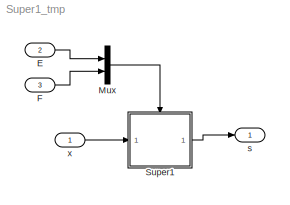
MODEL Super1_tmp
KIND model
BLOCK [Inport] E
  IconDisplay = Port number
  Port = 2
  SID = 3
BLOCK [Inport] F
  IconDisplay = Port number
  Port = 3
  SID = 4
BLOCK [Mux] Mux
  DisplayOption = bar
  Inputs = 2
  Ports = [2, 1]
  SID = 2
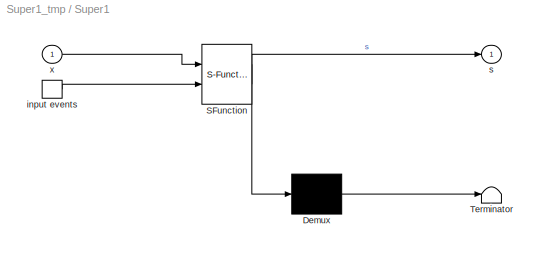
BLOCK [SubSystem] Super1
  ErrorFcn = Stateflow.Translate.translate
  PermitHierarchicalResolution = ParametersOnly
  Ports = [1, 1, 0, 1]
  RequestExecContextInheritance = off
  SFBlockType = Chart
  SID = 1
  TreatAsAtomicUnit = on
  Variant = off
BLOCK [Demux] Super1/ Demux 
  Outputs = 1
  Ports = [1, 1]
  SID = 1::11
BLOCK [S-Function] Super1/ SFunction 
  EnableBusSupport = off
  FunctionName = sf_sfun
  PortCounts = [2 2]
  Ports = [2, 2]
  SFunctionDeploymentMode = off
  SID = 1::10
  Tag = Stateflow S-Function Super1_tmp 1
BLOCK [Terminator] Super1/ Terminator 
  SID = 1::12
BLOCK [TriggerPort] Super1/ input events 
  Ports = [0, 1]
  SID = 1::2
  ShowOutputPort = on
  TriggerType = either
BLOCK [Outport] Super1/s
  IconDisplay = Port number
  SID = 1::9
BLOCK [Inport] Super1/x
  IconDisplay = Port number
  SID = 1::1
BLOCK [Outport] s
  IconDisplay = Port number
  SID = 6
BLOCK [Inport] x
  IconDisplay = Port number
  SID = 5
LINE E:1 -> Mux:1
LINE F:1 -> Mux:2
LINE Mux:1 -> Super1:trigger
LINE Super1/ Demux :1 -> Super1/ Terminator :1
LINE Super1/ SFunction :1 -> Super1/ Demux :1
LINE Super1/ SFunction :2 -> Super1/s:1
LINE Super1/ input events :1 -> Super1/ SFunction :2
LINE Super1/x:1 -> Super1/ SFunction :1
LINE Super1:1 -> s:1
LINE x:1 -> Super1:1
CHART Super1 states=6 transitions=13
  STATE_LABEL 'A\\nen : s = 1;'
  STATE_LABEL 'B\\nen : s = 5;'
  STATE_LABEL 'C'
  STATE_LABEL 'C1\\nen : s = 3;'
  STATE_LABEL 'C2\\nen : s = 4;'
  STATE_LABEL 'D\\nen : s = 2;'
